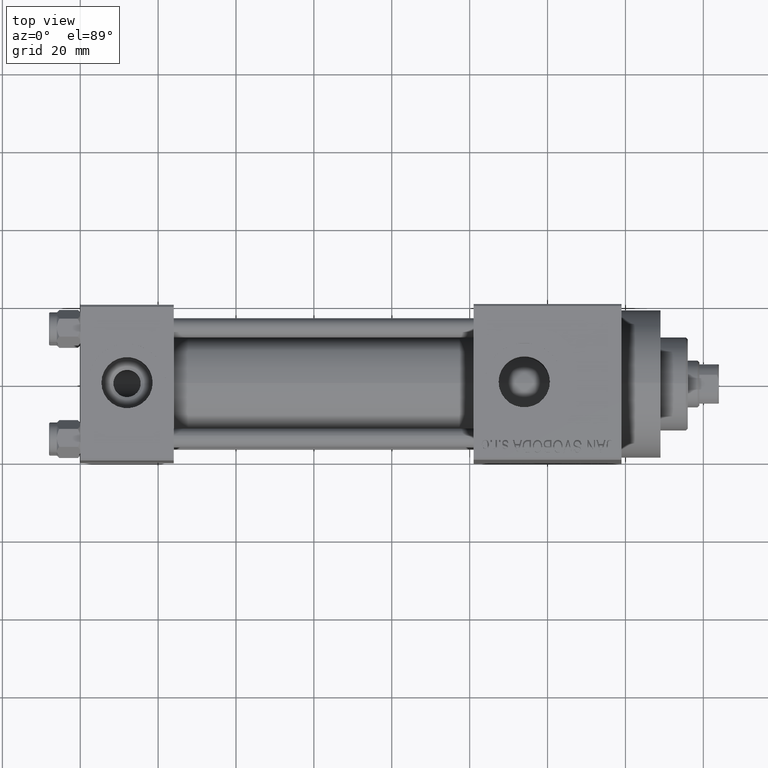
[diagram: clean part render]
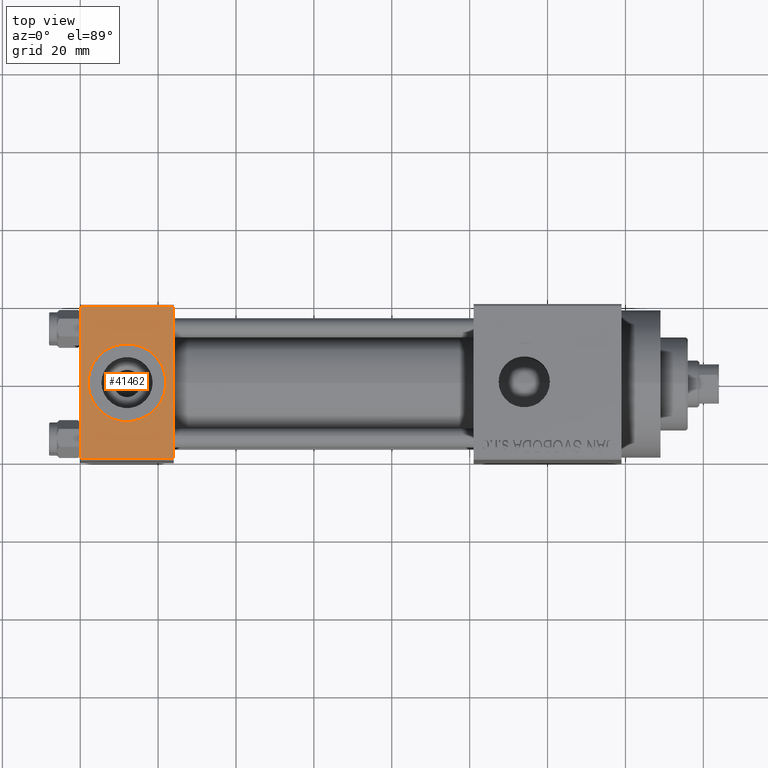
[diagram: same view with one face highlighted and labeled with its STEP entity id]
A machine part, top view. The second image highlights one B-rep face of the part: STEP entity #41462.
In plain terms, the highlighted planar face has unit normal (0, 0, -1).
Its self-contained STEP definition (entity closure, byte-faithful):
#16 = CARTESIAN_POINT ( 'NONE',  ( 24.00000000000000000, 20.00000000000000000, 20.00000000000000000 ) ) ;
#1909 = EDGE_CURVE ( 'NONE', #40734, #42094, #25132, .T. ) ;
#2383 = VECTOR ( 'NONE', #9859, 1000.000000000000000 ) ;
#3916 = LINE ( 'NONE', #28461, #43530 ) ;
#4773 = ORIENTED_EDGE ( 'NONE', *, *, #17626, .F. ) ;
#4937 = EDGE_CURVE ( 'NONE', #26989, #42094, #45047, .T. ) ;
#7630 = ORIENTED_EDGE ( 'NONE', *, *, #1909, .F. ) ;
#9859 = DIRECTION ( 'NONE',  ( 0.000000000000000000, -1.000000000000000000, -2.602085213965210149E-16 ) ) ;
#10823 = DIRECTION ( 'NONE',  ( 0.000000000000000000, -1.000000000000000000, -2.602085213965210149E-16 ) ) ;
#11009 = VECTOR ( 'NONE', #26946, 1000.000000000000000 ) ;
#11414 = PLANE ( 'NONE',  #17192 ) ;
#14645 = EDGE_LOOP ( 'NONE', ( #15366, #33375, #7630, #21276 ) ) ;
#14903 = ORIENTED_EDGE ( 'NONE', *, *, #19284, .F. ) ;
#15366 = ORIENTED_EDGE ( 'NONE', *, *, #16114, .T. ) ;
#16114 = EDGE_CURVE ( 'NONE', #44098, #26989, #46058, .T. ) ;
#16874 = CIRCLE ( 'NONE', #38936, 9.999999999999998224 ) ;
#17192 = AXIS2_PLACEMENT_3D ( 'NONE', #16, #40247, #44284 ) ;
#17626 = EDGE_CURVE ( 'NONE', #31210, #36235, #16874, .T. ) ;
#18516 = VECTOR ( 'NONE', #10823, 1000.000000000000000 ) ;
#19284 = EDGE_CURVE ( 'NONE', #36235, #31210, #45852, .T. ) ;
#19470 = EDGE_CURVE ( 'NONE', #40734, #44098, #3916, .T. ) ;
#21276 = ORIENTED_EDGE ( 'NONE', *, *, #19470, .T. ) ;
#23360 = DIRECTION ( 'NONE',  ( 0.000000000000000000, 0.000000000000000000, 1.000000000000000000 ) ) ;
#23548 = CARTESIAN_POINT ( 'NONE',  ( 22.00000000000000000, 1.540743955509788682E-30, 19.99999999999999645 ) ) ;
#24127 = CARTESIAN_POINT ( 'NONE',  ( 0.000000000000000000, -19.49999999999999289, 19.99999999999998934 ) ) ;
#25132 = LINE ( 'NONE', #43460, #18516 ) ;
#25356 = DIRECTION ( 'NONE',  ( -1.000000000000000000, 0.000000000000000000, 0.000000000000000000 ) ) ;
#26946 = DIRECTION ( 'NONE',  ( 1.000000000000000000, 0.000000000000000000, 0.000000000000000000 ) ) ;
#26989 = VERTEX_POINT ( 'NONE', #24127 ) ;
#27965 = CARTESIAN_POINT ( 'NONE',  ( 0.000000000000000000, 20.00000000000000000, 20.00000000000000000 ) ) ;
#28461 = CARTESIAN_POINT ( 'NONE',  ( 0.000000000000000000, 19.50000000000000000, 20.00000000000000000 ) ) ;
#30502 = DIRECTION ( 'NONE',  ( 1.000000000000000000, 0.000000000000000000, 0.000000000000000000 ) ) ;
#31210 = VERTEX_POINT ( 'NONE', #23548 ) ;
#31408 = AXIS2_PLACEMENT_3D ( 'NONE', #39471, #40402, #43290 ) ;
#31833 = CARTESIAN_POINT ( 'NONE',  ( 24.00000000000000000, -19.49999999999999289, 19.99999999999998934 ) ) ;
#33103 = FACE_OUTER_BOUND ( 'NONE', #14645, .T. ) ;
#33138 = CARTESIAN_POINT ( 'NONE',  ( 24.00000000000000000, -19.49999999999999289, 19.99999999999998934 ) ) ;
#33375 = ORIENTED_EDGE ( 'NONE', *, *, #4937, .T. ) ;
#36235 = VERTEX_POINT ( 'NONE', #45993 ) ;
#38936 = AXIS2_PLACEMENT_3D ( 'NONE', #41439, #23360, #30502 ) ;
#39471 = CARTESIAN_POINT ( 'NONE',  ( 12.00000000000000000, 1.540743955509788682E-30, 19.99999999999999645 ) ) ;
#40247 = DIRECTION ( 'NONE',  ( 0.000000000000000000, 2.602085213965210149E-16, -1.000000000000000000 ) ) ;
#40402 = DIRECTION ( 'NONE',  ( 0.000000000000000000, 0.000000000000000000, 1.000000000000000000 ) ) ;
#40734 = VERTEX_POINT ( 'NONE', #45933 ) ;
#41439 = CARTESIAN_POINT ( 'NONE',  ( 12.00000000000000000, 1.540743955509788682E-30, 19.99999999999999645 ) ) ;
#41462 = ADVANCED_FACE ( 'NONE', ( #44058, #33103 ), #11414, .F. ) ;
#42092 = EDGE_LOOP ( 'NONE', ( #4773, #14903 ) ) ;
#42094 = VERTEX_POINT ( 'NONE', #31833 ) ;
#42214 = CARTESIAN_POINT ( 'NONE',  ( 0.000000000000000000, 19.50000000000000000, 20.00000000000000000 ) ) ;
#43290 = DIRECTION ( 'NONE',  ( 1.000000000000000000, 0.000000000000000000, 0.000000000000000000 ) ) ;
#43460 = CARTESIAN_POINT ( 'NONE',  ( 24.00000000000000000, 20.00000000000000000, 20.00000000000000000 ) ) ;
#43530 = VECTOR ( 'NONE', #25356, 1000.000000000000000 ) ;
#44058 = FACE_BOUND ( 'NONE', #42092, .T. ) ;
#44098 = VERTEX_POINT ( 'NONE', #42214 ) ;
#44284 = DIRECTION ( 'NONE',  ( 0.000000000000000000, 1.000000000000000000, 2.602085213965210149E-16 ) ) ;
#45047 = LINE ( 'NONE', #33138, #11009 ) ;
#45852 = CIRCLE ( 'NONE', #31408, 9.999999999999998224 ) ;
#45933 = CARTESIAN_POINT ( 'NONE',  ( 24.00000000000000000, 19.50000000000000000, 20.00000000000000000 ) ) ;
#45993 = CARTESIAN_POINT ( 'NONE',  ( 2.000000000000003553, 1.224646799147354440E-15, 19.99999999999999645 ) ) ;
#46058 = LINE ( 'NONE', #27965, #2383 ) ;